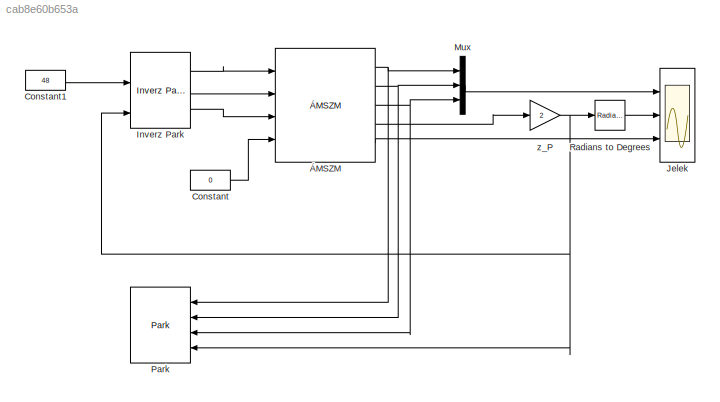
MODEL slx_cab8e60b653a
KIND model
CONFIG AbsTol = auto
CONFIG EnableMultiTasking = off
CONFIG FixedStep = auto
CONFIG MaxStep = 10e-6
CONFIG MinStep = auto
CONFIG RelTol = 1e-3
CONFIG SampleTimeConstraint = Unconstrained
CONFIG SolverName = VariableStepAuto
CONFIG StartTime = 0.0
CONFIG StopTime = 50e-3
BLOCK [Constant] Constant
  Value = 0
BLOCK [Constant] Constant1
  Value = 48
BLOCK [Reference] Inverz Park  REF=EMD/Inverz Park
  Ports = [4, 3]
  SourceBlock = EMD/Inverz Park
BLOCK [Scope] Jelek
  Floating = off
  NumInputPorts = 3
  Ports = [3]
  ScopeSpecificationString = Simulink.scopes.TimeScopeBlockCfg('CurrentConfiguration', extmgr.ConfigurationSet(extmgr.Configuration('Core','General UI',true),extmgr.Configuration('Core','Source UI',true),extmgr.Configuration('Sources','WiredSimulink',true),extmgr.Configuration('Visuals','Time Domain',true,'SerializedDisplays',{struct('MinYLimReal','-0.36571','MaxYLimReal','0.40597','YLabelReal','','MinYLimMag','0.00000','MaxY...<+3062ch>
BLOCK [Mux] Mux
  DisplayOption = bar
  Inputs = 3
  Ports = [3, 1]
BLOCK [Reference] Park  REF=EMD/Park
  Ports = [4, 3]
  SourceBlock = EMD/Park
BLOCK [Reference] Radians to Degrees  REF=simulink_extras/Transformations/Radians
to Degrees
  Ports = [1, 1]
  SourceBlock = simulink_extras/Transformations/Radians\nto Degrees
  SourceProductBaseCode = SL
  SourceType = RadiansToDegrees
BLOCK [Gain] z_P
  Gain = 2
BLOCK [Reference] ÁMSZM  REF=EMD/ÁMSZM
  Ports = [4, 5]
  SourceBlock = EMD/ÁMSZM
  SourceType = Állandó mágneses szinkron motor
LINE Constant1:1 -> Inverz Park:2
LINE Constant:1 -> ÁMSZM:4
LINE Inverz Park:1 -> ÁMSZM:1
LINE Inverz Park:2 -> ÁMSZM:2
LINE Inverz Park:3 -> ÁMSZM:3
LINE Mux:1 -> Jelek:1
LINE Radians to Degrees:1 -> Jelek:2
NET z_P:1 -> Inverz Park:4, Park:4, Radians to Degrees:1
NET ÁMSZM:1 -> Mux:1, Park:1
NET ÁMSZM:2 -> Mux:2, Park:2
NET ÁMSZM:3 -> Mux:3, Park:3
LINE ÁMSZM:4 -> z_P:1
LINE ÁMSZM:5 -> Jelek:3
note: NET lines group one-source signal fan-out (src -> all destinations, sorted); 1:1 wires keep LINE
